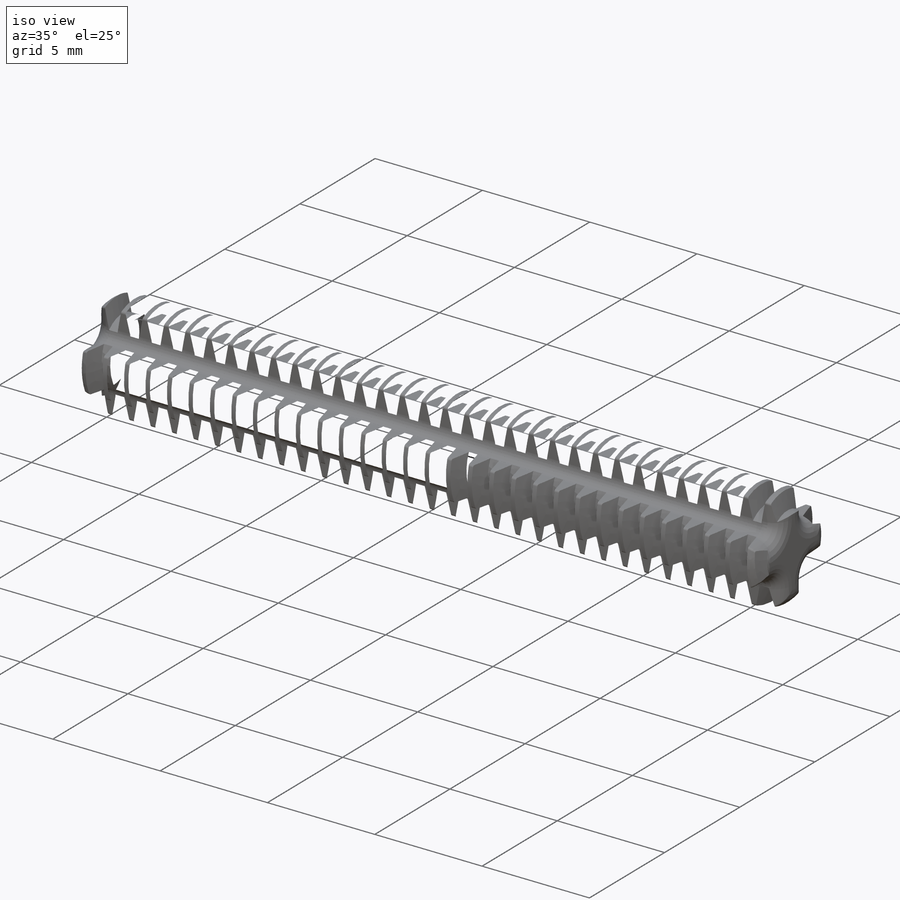
[diagram: iso view]
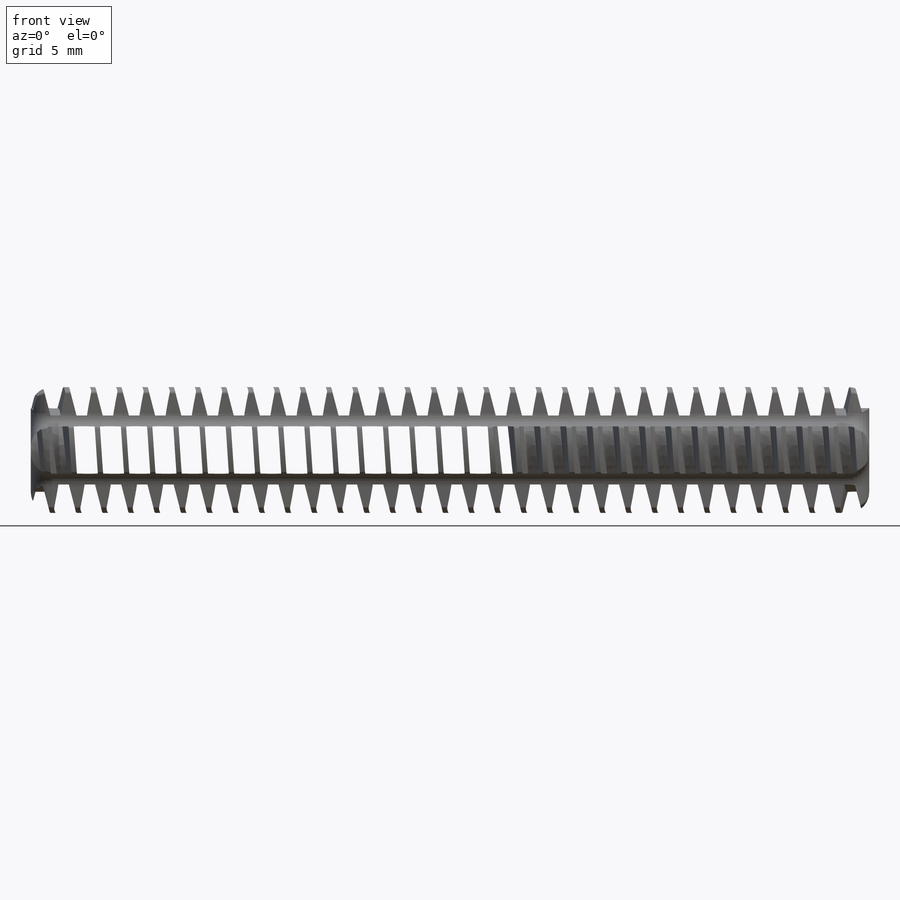
[diagram: front view]
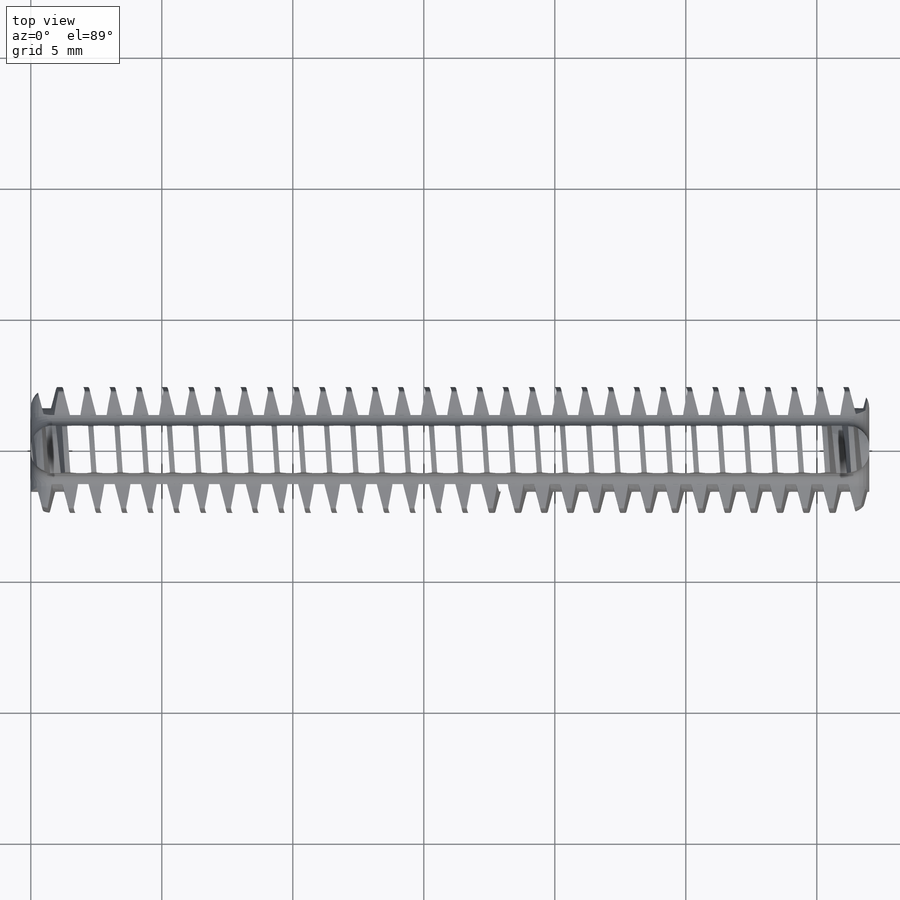
[diagram: top view]
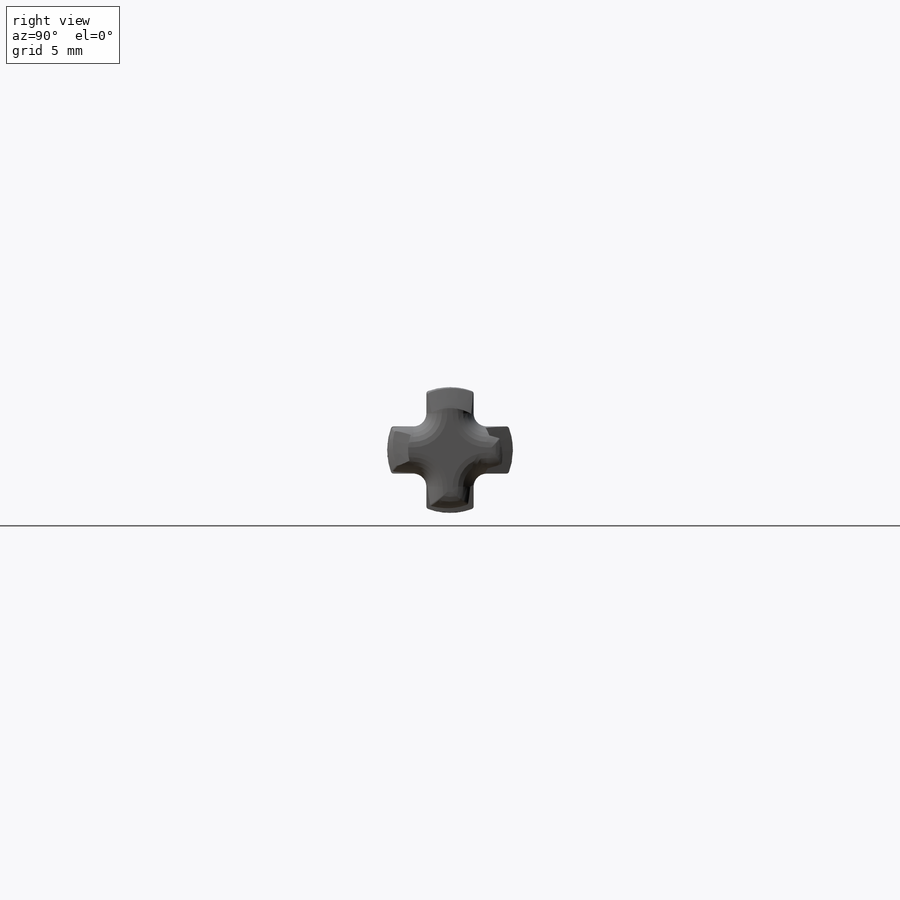
[diagram: right view]
SOLIDWORKS PART (.sldprt)
format: sldprt  version: not decoded by parser v0  size: 1,605,120 bytes
history: native  units: mm
features: plane x3, sketch x3, fillet x2, material x1, extrude x1, helix x1, sweep x1 (+10 scaffold rows collapsed)
feature tree (22):
  scaffold x10  (default folders/planes/origin — collapsed)
  material  "PET"
  plane  "Alzado"
  plane  "Planta"
  plane  "Vista lateral"
  sketch  "Croquis1"  dims[c1.D1=4.8mm c1.D3=0.5mm c1.D2=1.8mm c2.D1=~1.517893mm]
  extrude  "Saliente-Extruir1"  Depth=32mm
  fillet  "Redondeo1"  Radius=0.1mm
  fillet  "Redondeo2"  Radius=0.8mm
  sketch  "Croquis7"
  helix  "Hélice/Espiral1"  Pitch=33mm
  sketch  "Profile"  dims[c1.D1=1.55mm c1.D2=1.55mm c2.D1=1.55mm c2.D2=1.55mm c3.D1=32.0mm c4.D1=~0.179049deg c5.D1=1.6mm c5.D2=0.4mm c5.D3=0.6mm c5.D4=0.5mm c5.D5=0.4mm c5.D6=1.0mm c6.D3=0.8mm c6.D4=1.5mm c6.D1=1.6mm]
  sweep  "Cortar-Barrer5"
decode coverage: 6 of 8 modeling features carry decoded parameters
note: ~ marks probable driven/reference dimensions
note: suppression state not decoded; provenance and decode notes live in map.json
